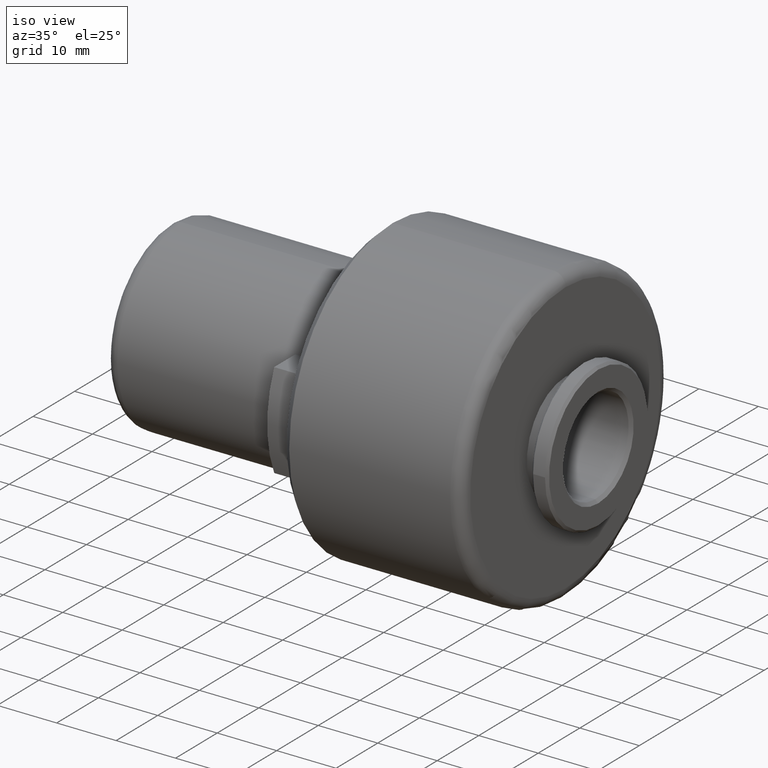
[diagram: clean part render]
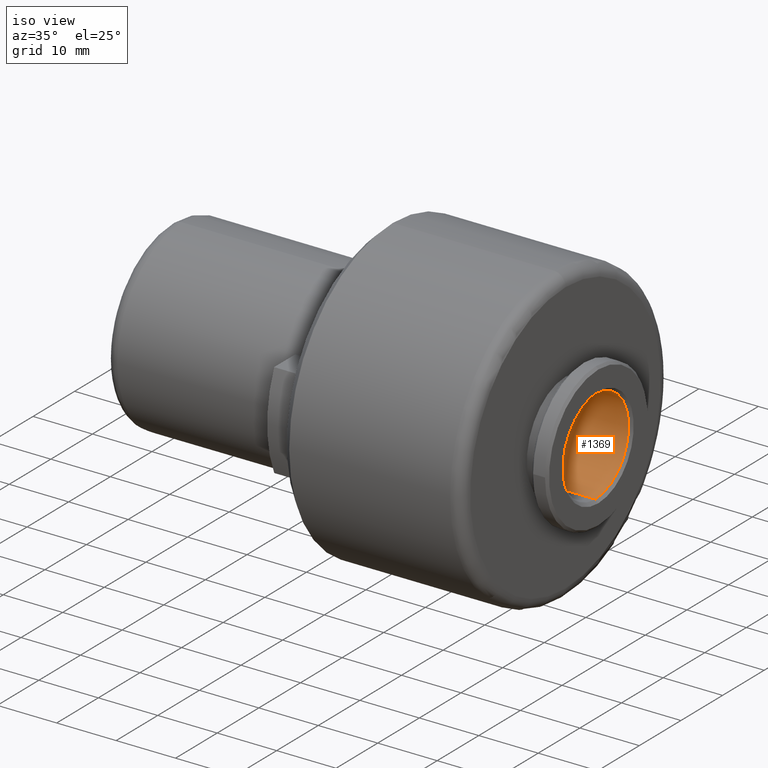
[diagram: same view with one face highlighted and labeled with its STEP entity id]
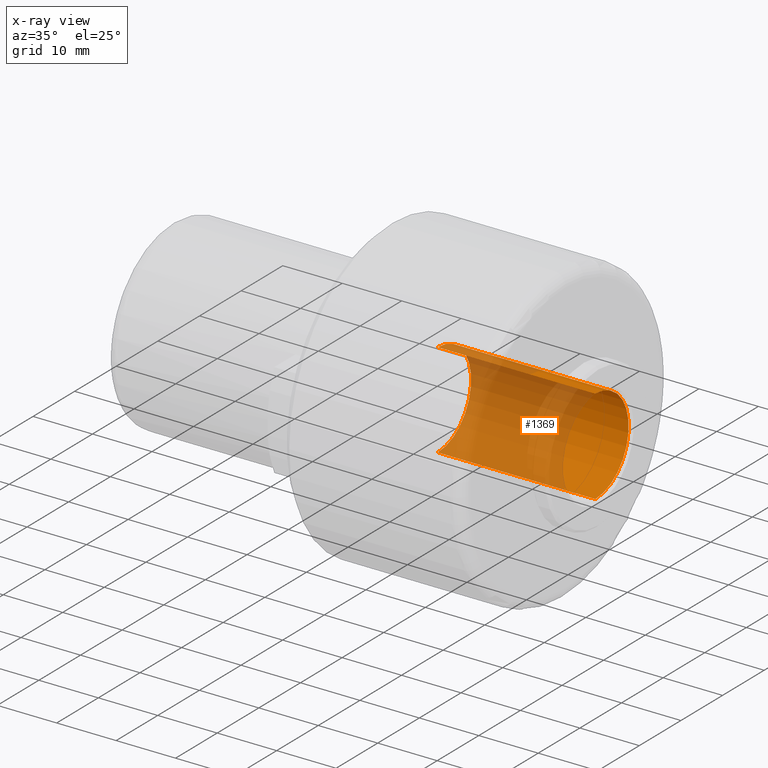
[diagram: x-ray of the same camera — body ghosted, the highlighted face saturated]
A machine part, iso view. The second image highlights one B-rep face of the part: STEP entity #1369.
The next image is the same camera in x-ray: the body ghosted, the highlighted face saturated — about 68% of this face is hidden behind the body in this view.
In plain terms, the highlighted cylindrical surface (partial cylindrical patch) has radius 8 mm, axis along (-1, -0, -0).
Its self-contained STEP definition (entity closure, byte-faithful):
#63 = ORIENTED_EDGE ( 'NONE', *, *, #637, .F. ) ;
#94 = EDGE_LOOP ( 'NONE', ( #63, #1361, #868, #357 ) ) ;
#130 = LINE ( 'NONE', #996, #1292 ) ;
#148 = CYLINDRICAL_SURFACE ( 'NONE', #219, 7.999999999999998200 ) ;
#190 = AXIS2_PLACEMENT_3D ( 'NONE', #983, #1320, #276 ) ;
#214 = DIRECTION ( 'NONE',  ( -1.000000000000000000, -0.0000000000000000000, -0.0000000000000000000 ) ) ;
#216 = VERTEX_POINT ( 'NONE', #1434 ) ;
#219 = AXIS2_PLACEMENT_3D ( 'NONE', #1450, #214, #326 ) ;
#234 = CARTESIAN_POINT ( 'NONE',  ( 45.10000000000000100, 9.797174393178823700E-016, -7.999999999999996400 ) ) ;
#254 = EDGE_CURVE ( 'NONE', #216, #607, #264, .T. ) ;
#264 = CIRCLE ( 'NONE', #1250, 7.999999999999998200 ) ;
#276 = DIRECTION ( 'NONE',  ( 0.0000000000000000000, 0.0000000000000000000, 1.000000000000000000 ) ) ;
#308 = DIRECTION ( 'NONE',  ( -1.000000000000000000, -0.0000000000000000000, -0.0000000000000000000 ) ) ;
#326 = DIRECTION ( 'NONE',  ( 0.0000000000000000000, 0.0000000000000000000, 1.000000000000000000 ) ) ;
#357 = ORIENTED_EDGE ( 'NONE', *, *, #626, .T. ) ;
#410 = VERTEX_POINT ( 'NONE', #1168 ) ;
#450 = FACE_OUTER_BOUND ( 'NONE', #94, .T. ) ;
#606 = CARTESIAN_POINT ( 'NONE',  ( 71.59999999999998000, 0.0000000000000000000, 0.0000000000000000000 ) ) ;
#607 = VERTEX_POINT ( 'NONE', #861 ) ;
#626 = EDGE_CURVE ( 'NONE', #410, #672, #1364, .T. ) ;
#637 = EDGE_CURVE ( 'NONE', #216, #672, #1033, .T. ) ;
#672 = VERTEX_POINT ( 'NONE', #234 ) ;
#697 = DIRECTION ( 'NONE',  ( 0.0000000000000000000, 0.0000000000000000000, 1.000000000000000000 ) ) ;
#764 = DIRECTION ( 'NONE',  ( 1.000000000000000000, -0.0000000000000000000, -0.0000000000000000000 ) ) ;
#794 = CARTESIAN_POINT ( 'NONE',  ( 0.0000000000000000000, 9.797174393178823700E-016, -7.999999999999998200 ) ) ;
#861 = CARTESIAN_POINT ( 'NONE',  ( 71.59999999999998000, 0.0000000000000000000, 7.999999999999998200 ) ) ;
#868 = ORIENTED_EDGE ( 'NONE', *, *, #1102, .T. ) ;
#983 = CARTESIAN_POINT ( 'NONE',  ( 45.10000000000000100, 0.0000000000000000000, 0.0000000000000000000 ) ) ;
#996 = CARTESIAN_POINT ( 'NONE',  ( 0.0000000000000000000, 0.0000000000000000000, 7.999999999999998200 ) ) ;
#1033 = LINE ( 'NONE', #794, #1324 ) ;
#1102 = EDGE_CURVE ( 'NONE', #607, #410, #130, .T. ) ;
#1168 = CARTESIAN_POINT ( 'NONE',  ( 45.10000000000000100, 0.0000000000000000000, 7.999999999999996400 ) ) ;
#1241 = DIRECTION ( 'NONE',  ( -1.000000000000000000, -0.0000000000000000000, -0.0000000000000000000 ) ) ;
#1250 = AXIS2_PLACEMENT_3D ( 'NONE', #606, #764, #697 ) ;
#1292 = VECTOR ( 'NONE', #308, 1000.000000000000000 ) ;
#1320 = DIRECTION ( 'NONE',  ( -1.000000000000000000, -0.0000000000000000000, -0.0000000000000000000 ) ) ;
#1324 = VECTOR ( 'NONE', #1241, 1000.000000000000000 ) ;
#1361 = ORIENTED_EDGE ( 'NONE', *, *, #254, .T. ) ;
#1364 = CIRCLE ( 'NONE', #190, 7.999999999999996400 ) ;
#1369 = ADVANCED_FACE ( 'NONE', ( #450 ), #148, .F. ) ;
#1434 = CARTESIAN_POINT ( 'NONE',  ( 71.59999999999998000, 9.797174393178823700E-016, -7.999999999999998200 ) ) ;
#1450 = CARTESIAN_POINT ( 'NONE',  ( 0.0000000000000000000, 0.0000000000000000000, 0.0000000000000000000 ) ) ;